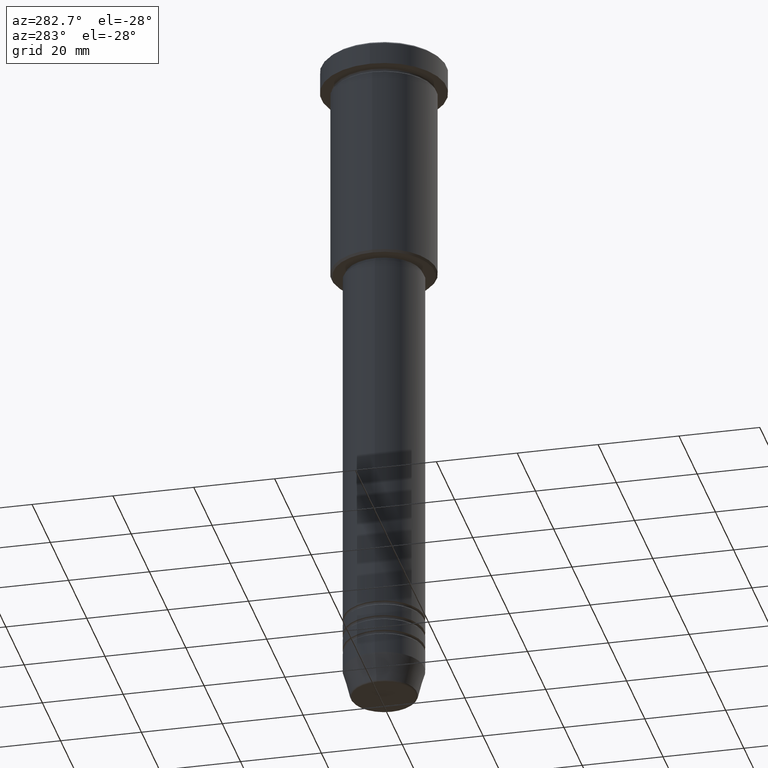
[diagram: clean part render]
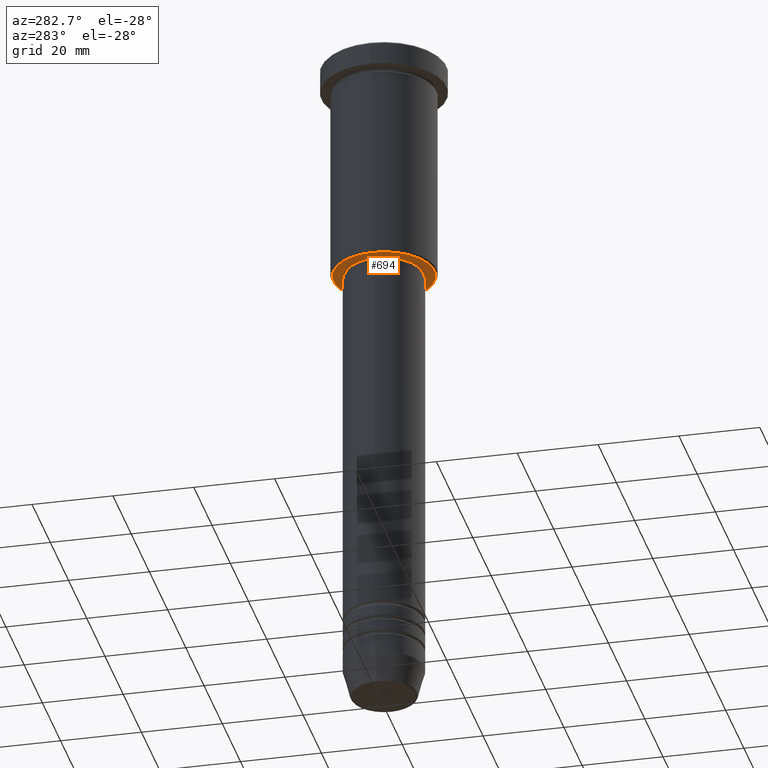
[diagram: same view with one face highlighted and labeled with its STEP entity id]
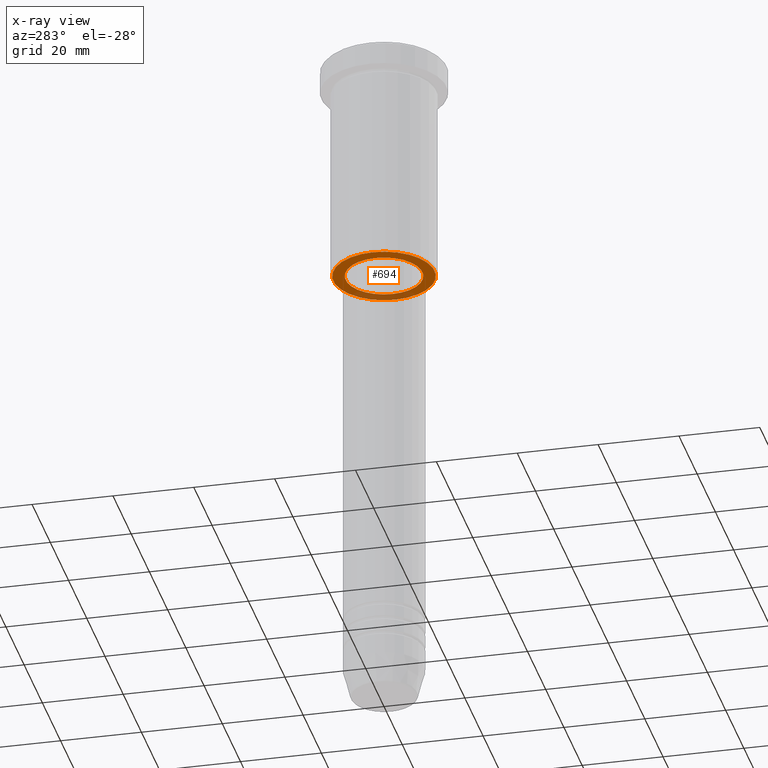
[diagram: x-ray of the same camera — body ghosted, the highlighted face saturated]
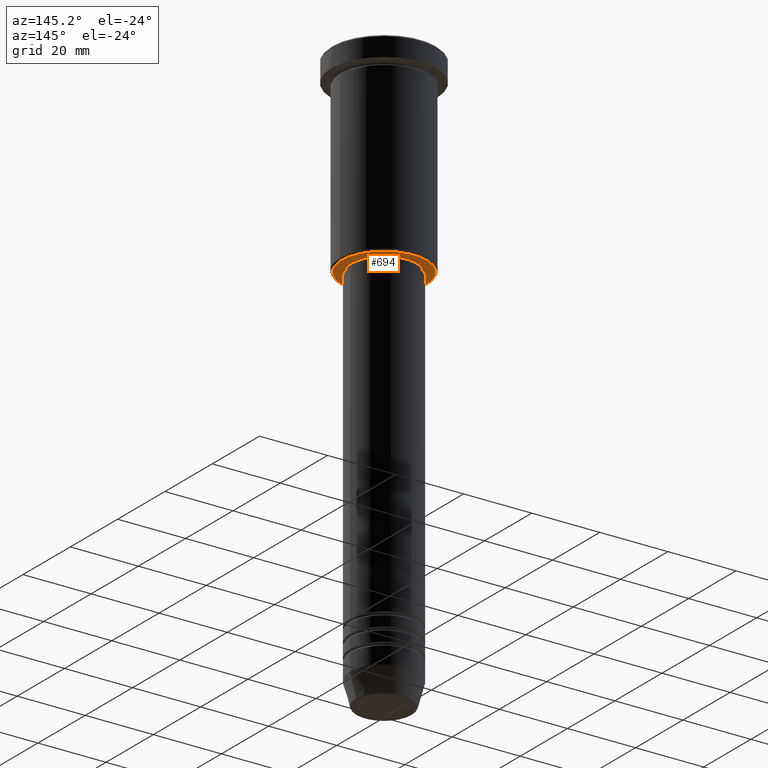
[diagram: same view with one face highlighted and labeled with its STEP entity id]
A machine part, auxiliary view. The second image highlights one B-rep face of the part: STEP entity #694.
The next image is the same camera in x-ray: the body ghosted, the highlighted face saturated — about 21% of this face is hidden behind the body in this view.
A second angle (auxiliary view) of the same face is appended — the face is thin or edge-on in the first view.
In plain terms, the highlighted planar face has unit normal (0, 0, -1).
Its self-contained STEP definition (entity closure, byte-faithful):
#89 = AXIS2_PLACEMENT_3D ( 'NONE', #607, #981, #149 ) ;
#149 = DIRECTION ( 'NONE',  ( -1.000000000000000000, 0.000000000000000000, 0.000000000000000000 ) ) ;
#195 = CARTESIAN_POINT ( 'NONE',  ( 9.500000000000001776, 0.000000000000000000, -55.99999999999998579 ) ) ;
#226 = CARTESIAN_POINT ( 'NONE',  ( -12.49999999999996980, 1.561424668912873336E-15, -55.99999999999999289 ) ) ;
#238 = AXIS2_PLACEMENT_3D ( 'NONE', #612, #879, #510 ) ;
#268 = DIRECTION ( 'NONE',  ( -0.000000000000000000, -0.000000000000000000, 1.000000000000000000 ) ) ;
#278 = EDGE_LOOP ( 'NONE', ( #673, #609 ) ) ;
#286 = ORIENTED_EDGE ( 'NONE', *, *, #582, .T. ) ;
#297 = CIRCLE ( 'NONE', #89, 12.49999999999996980 ) ;
#353 = DIRECTION ( 'NONE',  ( -1.000000000000000000, 0.000000000000000000, -0.000000000000000000 ) ) ;
#451 = VERTEX_POINT ( 'NONE', #195 ) ;
#510 = DIRECTION ( 'NONE',  ( -1.000000000000000000, 0.000000000000000000, 0.000000000000000000 ) ) ;
#540 = DIRECTION ( 'NONE',  ( 1.000000000000000000, 0.000000000000000000, 0.000000000000000000 ) ) ;
#570 = AXIS2_PLACEMENT_3D ( 'NONE', #1009, #1098, #353 ) ;
#573 = VERTEX_POINT ( 'NONE', #750 ) ;
#582 = EDGE_CURVE ( 'NONE', #451, #573, #1015, .T. ) ;
#607 = CARTESIAN_POINT ( 'NONE',  ( 0.000000000000000000, 0.000000000000000000, -55.99999999999999289 ) ) ;
#609 = ORIENTED_EDGE ( 'NONE', *, *, #786, .T. ) ;
#612 = CARTESIAN_POINT ( 'NONE',  ( 0.000000000000000000, 0.000000000000000000, -55.99999999999999289 ) ) ;
#654 = DIRECTION ( 'NONE',  ( -0.000000000000000000, -0.000000000000000000, 1.000000000000000000 ) ) ;
#673 = ORIENTED_EDGE ( 'NONE', *, *, #1027, .T. ) ;
#694 = ADVANCED_FACE ( 'NONE', ( #1164, #739 ), #1109, .T. ) ;
#725 = DIRECTION ( 'NONE',  ( 1.000000000000000000, 0.000000000000000000, 0.000000000000000000 ) ) ;
#739 = FACE_BOUND ( 'NONE', #835, .T. ) ;
#750 = CARTESIAN_POINT ( 'NONE',  ( -9.500000000000001776, 1.163414459189985682E-15, -55.99999999999998579 ) ) ;
#766 = EDGE_CURVE ( 'NONE', #573, #451, #840, .T. ) ;
#786 = EDGE_CURVE ( 'NONE', #1107, #1076, #297, .T. ) ;
#835 = EDGE_LOOP ( 'NONE', ( #286, #980 ) ) ;
#840 = CIRCLE ( 'NONE', #1072, 9.500000000000001776 ) ;
#879 = DIRECTION ( 'NONE',  ( 0.000000000000000000, 0.000000000000000000, -1.000000000000000000 ) ) ;
#914 = CARTESIAN_POINT ( 'NONE',  ( 12.49999999999996980, 0.000000000000000000, -55.99999999999999289 ) ) ;
#980 = ORIENTED_EDGE ( 'NONE', *, *, #766, .T. ) ;
#981 = DIRECTION ( 'NONE',  ( 0.000000000000000000, 0.000000000000000000, -1.000000000000000000 ) ) ;
#1005 = CARTESIAN_POINT ( 'NONE',  ( 0.000000000000000000, 0.000000000000000000, -55.99999999999998579 ) ) ;
#1009 = CARTESIAN_POINT ( 'NONE',  ( 0.000000000000000000, 13.00000000000000000, -55.99999999999999289 ) ) ;
#1015 = CIRCLE ( 'NONE', #1157, 9.500000000000001776 ) ;
#1019 = CIRCLE ( 'NONE', #238, 12.49999999999996980 ) ;
#1027 = EDGE_CURVE ( 'NONE', #1076, #1107, #1019, .T. ) ;
#1072 = AXIS2_PLACEMENT_3D ( 'NONE', #1005, #268, #540 ) ;
#1076 = VERTEX_POINT ( 'NONE', #914 ) ;
#1098 = DIRECTION ( 'NONE',  ( 0.000000000000000000, 0.000000000000000000, -1.000000000000000000 ) ) ;
#1107 = VERTEX_POINT ( 'NONE', #226 ) ;
#1109 = PLANE ( 'NONE',  #570 ) ;
#1116 = CARTESIAN_POINT ( 'NONE',  ( 0.000000000000000000, 0.000000000000000000, -55.99999999999998579 ) ) ;
#1157 = AXIS2_PLACEMENT_3D ( 'NONE', #1116, #654, #725 ) ;
#1164 = FACE_OUTER_BOUND ( 'NONE', #278, .T. ) ;